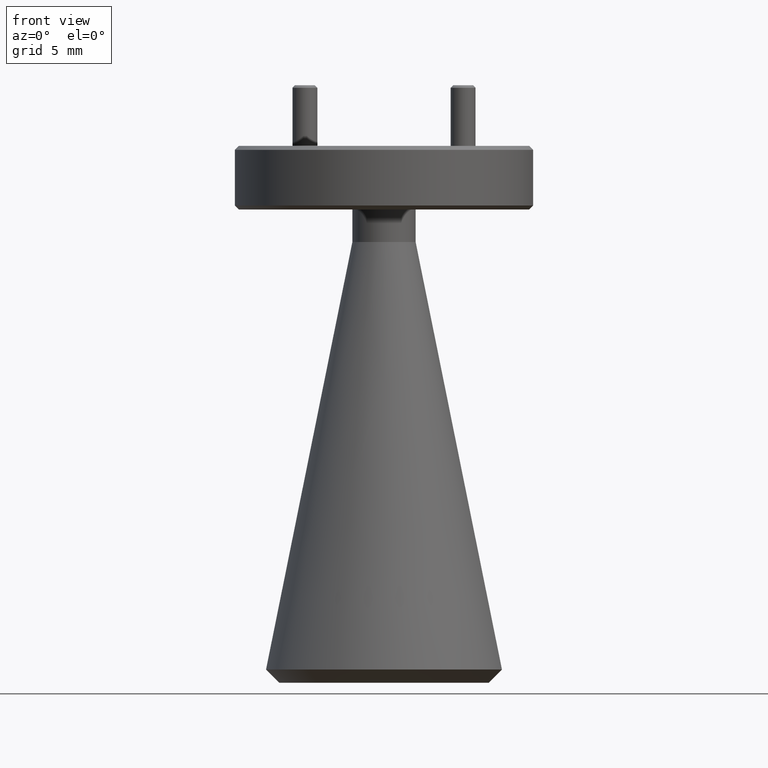
[diagram: clean part render]
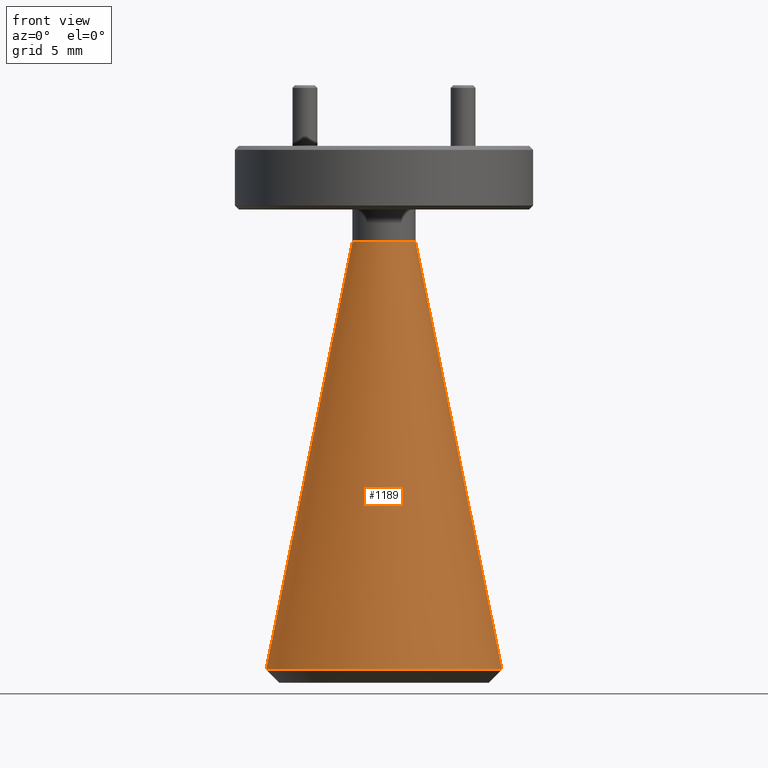
[diagram: same view with one face highlighted and labeled with its STEP entity id]
A machine part, front view. The second image highlights one B-rep face of the part: STEP entity #1189.
In plain terms, the highlighted conical surface has half-angle 11.418 deg.
Its self-contained STEP definition (entity closure, byte-faithful):
#2 = ORIENTED_EDGE ( 'NONE', *, *, #1322, .F. ) ;
#68 = DIRECTION ( 'NONE',  ( 1.000000000000000000, 0.000000000000000000, 0.000000000000000000 ) ) ;
#143 = CIRCLE ( 'NONE', #1478, 0.07950000000000000122 ) ;
#222 = CONICAL_SURFACE ( 'NONE', #1549, 0.07950000000000000122, 0.1992732862710626385 ) ;
#502 = LINE ( 'NONE', #848, #1209 ) ;
#542 = CIRCLE ( 'NONE', #1868, 0.2966164695992095091 ) ;
#544 = CARTESIAN_POINT ( 'NONE',  ( 0.000000000000000000, 0.000000000000000000, -0.2416397350363326813 ) ) ;
#554 = CARTESIAN_POINT ( 'NONE',  ( -0.07950000000000000122, 0.000000000000000000, -0.2416397350363326813 ) ) ;
#563 = EDGE_CURVE ( 'NONE', #564, #1969, #542, .T. ) ;
#564 = VERTEX_POINT ( 'NONE', #796 ) ;
#796 = CARTESIAN_POINT ( 'NONE',  ( -0.2966164695992095091, 0.000000000000000000, -1.316720844339721141 ) ) ;
#848 = CARTESIAN_POINT ( 'NONE',  ( 0.07950000000000000122, 9.735942053221458009E-18, -0.2416397350363326813 ) ) ;
#935 = CARTESIAN_POINT ( 'NONE',  ( 0.000000000000000000, 0.000000000000000000, -0.2416397350363326813 ) ) ;
#952 = ORIENTED_EDGE ( 'NONE', *, *, #2033, .F. ) ;
#955 = DIRECTION ( 'NONE',  ( -0.000000000000000000, -0.000000000000000000, 1.000000000000000000 ) ) ;
#1050 = VERTEX_POINT ( 'NONE', #2092 ) ;
#1078 = FACE_OUTER_BOUND ( 'NONE', #1569, .T. ) ;
#1189 = ADVANCED_FACE ( 'NONE', ( #1078 ), #222, .T. ) ;
#1209 = VECTOR ( 'NONE', #1949, 39.37007874015748143 ) ;
#1221 = DIRECTION ( 'NONE',  ( 0.000000000000000000, 0.000000000000000000, -1.000000000000000000 ) ) ;
#1251 = ORIENTED_EDGE ( 'NONE', *, *, #1695, .T. ) ;
#1253 = DIRECTION ( 'NONE',  ( -1.000000000000000000, 0.000000000000000000, 0.000000000000000000 ) ) ;
#1283 = DIRECTION ( 'NONE',  ( 1.000000000000000000, 0.000000000000000000, 0.000000000000000000 ) ) ;
#1316 = CARTESIAN_POINT ( 'NONE',  ( 0.000000000000000000, 0.000000000000000000, -1.316720844339721141 ) ) ;
#1322 = EDGE_CURVE ( 'NONE', #1050, #2213, #143, .T. ) ;
#1478 = AXIS2_PLACEMENT_3D ( 'NONE', #935, #1836, #1283 ) ;
#1549 = AXIS2_PLACEMENT_3D ( 'NONE', #544, #1221, #1253 ) ;
#1569 = EDGE_LOOP ( 'NONE', ( #952, #2, #1251, #1622 ) ) ;
#1622 = ORIENTED_EDGE ( 'NONE', *, *, #563, .T. ) ;
#1680 = DIRECTION ( 'NONE',  ( -0.1979570505604504593, 0.000000000000000000, -0.9802106947658790759 ) ) ;
#1682 = CARTESIAN_POINT ( 'NONE',  ( 0.07950000000000000122, 2.303049153006373674E-17, -0.2416397350363326813 ) ) ;
#1695 = EDGE_CURVE ( 'NONE', #1050, #564, #1845, .T. ) ;
#1836 = DIRECTION ( 'NONE',  ( -0.000000000000000000, -0.000000000000000000, 1.000000000000000000 ) ) ;
#1845 = LINE ( 'NONE', #554, #2241 ) ;
#1868 = AXIS2_PLACEMENT_3D ( 'NONE', #1316, #955, #68 ) ;
#1949 = DIRECTION ( 'NONE',  ( 0.1979570505604504593, 2.424274683375064092E-17, -0.9802106947658790759 ) ) ;
#1969 = VERTEX_POINT ( 'NONE', #2351 ) ;
#2033 = EDGE_CURVE ( 'NONE', #2213, #1969, #502, .T. ) ;
#2092 = CARTESIAN_POINT ( 'NONE',  ( -0.07950000000000000122, 0.000000000000000000, -0.2416397350363326813 ) ) ;
#2213 = VERTEX_POINT ( 'NONE', #1682 ) ;
#2241 = VECTOR ( 'NONE', #1680, 39.37007874015748143 ) ;
#2351 = CARTESIAN_POINT ( 'NONE',  ( 0.2966164695992095091, 3.632504100690601240E-17, -1.316720844339721141 ) ) ;